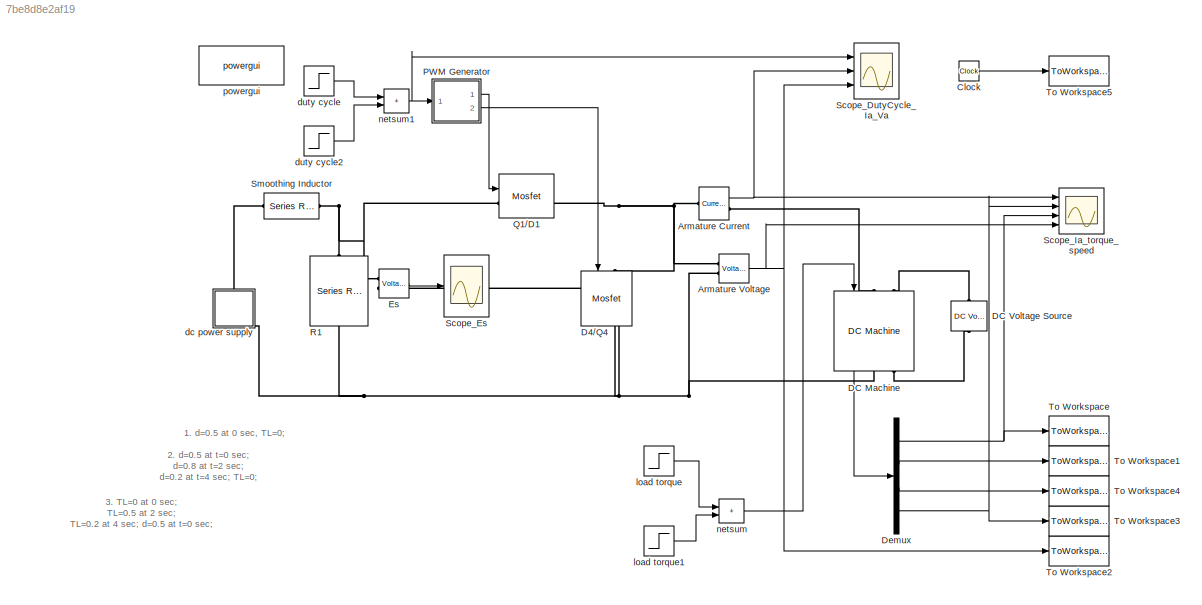
MODEL slx_7be8d8e2af19
KIND model
CONFIG AbsTol = auto
CONFIG EnableMultiTasking = on
CONFIG FixedStep = auto
CONFIG MaxStep = auto
CONFIG MinStep = auto
CONFIG RelTol = 1e-3
CONFIG SampleTimeConstraint = Unconstrained
CONFIG Solver = ode45
CONFIG SolverName = ode45
CONFIG StartTime = 0.0
CONFIG StopTime = 5
BLOCK [Reference] Armature Current   REF=spsCurrentMeasurementLib/Current Measurement
  AttributesFormatString = \n
  Ports = [0, 1, 0, 0, 0, 1, 1]
  SourceBlock = spsCurrentMeasurementLib/Current Measurement
  SourceProductBaseCode = PS
  SourceType = Current Measurement
  Tag = PoWeRsYsTeMmEaSuReMeNt
BLOCK [Reference] Armature Voltage  REF=spsVoltageMeasurementLib/Voltage Measurement
  AttributesFormatString = \n
  Ports = [0, 1, 0, 0, 0, 2]
  SourceBlock = spsVoltageMeasurementLib/Voltage Measurement
  SourceProductBaseCode = PS
  SourceType = Voltage Measurement
  Tag = PoWeRsYsTeMmEaSuReMeNt
BLOCK [Clock] Clock
BLOCK [Reference] D4//Q4  REF=spsMosfetLib/Mosfet
  Ports = [1, 1, 0, 0, 0, 1, 1]
  SourceBlock = spsMosfetLib/Mosfet
  SourceProductBaseCode = PS
  SourceType = Mosfet
BLOCK [Reference] DC Machine  REF=spsDCMachineLib/DC Machine
  AttributesFormatString = \n
  Ports = [1, 1, 0, 0, 0, 2, 2]
  SourceBlock = spsDCMachineLib/DC Machine
  SourceProductBaseCode = PS
  SourceType = DC machine
BLOCK [Reference] DC Voltage Source  REF=spsDCVoltageSourceLib/DC Voltage Source
  AttributesFormatString = \n
  Description = source block
  Ports = [0, 0, 0, 0, 0, 1, 1]
  SourceBlock = spsDCVoltageSourceLib/DC Voltage Source
  SourceProductBaseCode = PS
  SourceType = DC Voltage Source
BLOCK [Demux] Demux
  DisplayOption = none
  Ports = [1, 4]
BLOCK [Reference] Es  REF=spsVoltageMeasurementLib/Voltage Measurement
  AttributesFormatString = \n
  Ports = [0, 1, 0, 0, 0, 2]
  SourceBlock = spsVoltageMeasurementLib/Voltage Measurement
  SourceProductBaseCode = PS
  SourceType = Voltage Measurement
  Tag = PoWeRsYsTeMmEaSuReMeNt
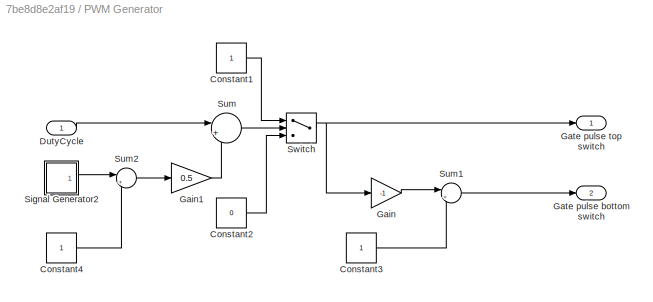
BLOCK [SubSystem] PWM Generator
  Ports = [1, 2]
  RequestExecContextInheritance = off
BLOCK [Constant] PWM Generator/Constant1
BLOCK [Constant] PWM Generator/Constant2
  Value = 0
BLOCK [Constant] PWM Generator/Constant3
BLOCK [Constant] PWM Generator/Constant4
BLOCK [Inport] PWM Generator/DutyCycle
BLOCK [Gain] PWM Generator/Gain
  Gain = -1
  OutDataTypeStr = Inherit: Same as input
  ParamDataTypeStr = Inherit: Same as input
  SaturateOnIntegerOverflow = on
BLOCK [Gain] PWM Generator/Gain1
  Gain = 0.5
  OutDataTypeStr = Inherit: Same as input
  ParamDataTypeStr = Inherit: Same as input
  SaturateOnIntegerOverflow = on
BLOCK [Outport] PWM Generator/Gate pulse bottom switch
  Port = 2
  VectorParamsAs1DForOutWhenUnconnected = off
BLOCK [Outport] PWM Generator/Gate pulse top switch
  VectorParamsAs1DForOutWhenUnconnected = off
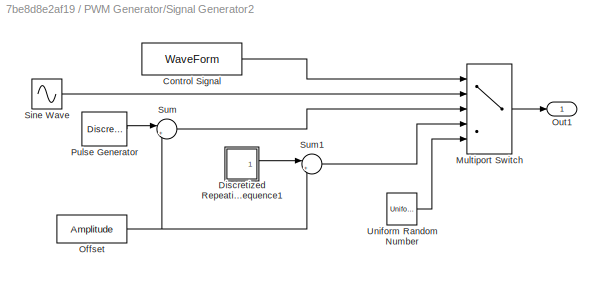
BLOCK [SubSystem] PWM Generator/Signal Generator2
  Ports = [0, 1]
  RequestExecContextInheritance = off
BLOCK [Constant] PWM Generator/Signal Generator2/Control Signal
  Value = WaveForm
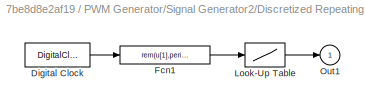
BLOCK [SubSystem] PWM Generator/Signal Generator2/Discretized Repeating Sequence1
  AncestorBlock = discretizing/Discretized\nRepeating Sequence
  Ports = [0, 1]
  RequestExecContextInheritance = off
BLOCK [DigitalClock] PWM Generator/Signal Generator2/Discretized Repeating Sequence1/Digital Clock
  SampleTime = SampleTime
BLOCK [Fcn] PWM Generator/Signal Generator2/Discretized Repeating Sequence1/Fcn1
  Expr = rem(u[1],period)
BLOCK [Lookup] PWM Generator/Signal Generator2/Discretized Repeating Sequence1/Look-Up Table
  InputValues = rep_seq_t
  Table = rep_seq_y
BLOCK [Outport] PWM Generator/Signal Generator2/Discretized Repeating Sequence1/Out1
  VectorParamsAs1DForOutWhenUnconnected = off
BLOCK [MultiPortSwitch] PWM Generator/Signal Generator2/Multiport Switch
  Inputs = 4
  Ports = [5, 1]
  SaturateOnIntegerOverflow = off
BLOCK [Constant] PWM Generator/Signal Generator2/Offset
  Value = Amplitude
BLOCK [Outport] PWM Generator/Signal Generator2/Out1
  VectorParamsAs1DForOutWhenUnconnected = off
BLOCK [DiscretePulseGenerator] PWM Generator/Signal Generator2/Pulse Generator
  Amplitude = 2*Amplitude
  Period = PeriodSamples
  PhaseDelay = halfSamples
  Ports = [0, 1]
  PulseWidth = halfSamples
  SampleTime = st
BLOCK [Sin] PWM Generator/Signal Generator2/Sine Wave
  Amplitude = Amplitude
  Frequency = frequencyRads
  Ports = [0, 1]
  SampleTime = SampleTime
BLOCK [Sum] PWM Generator/Signal Generator2/Sum
  InputSameDT = on
  Inputs = |+-
  OutDataTypeStr = Inherit: Same as first input
  Ports = [2, 1]
  SaturateOnIntegerOverflow = on
BLOCK [Sum] PWM Generator/Signal Generator2/Sum1
  InputSameDT = on
  Inputs = |++
  OutDataTypeStr = Inherit: Same as first input
  Ports = [2, 1]
  SaturateOnIntegerOverflow = on
BLOCK [UniformRandomNumber] PWM Generator/Signal Generator2/Uniform Random Number
  Maximum = Amplitude
  Minimum = (-1)*Amplitude
  SampleTime = SampleTime
BLOCK [Sum] PWM Generator/Sum
  Inputs = |+-
  Ports = [2, 1]
  SaturateOnIntegerOverflow = on
BLOCK [Sum] PWM Generator/Sum1
  Inputs = |++
  Ports = [2, 1]
  SaturateOnIntegerOverflow = on
BLOCK [Sum] PWM Generator/Sum2
  Inputs = |++
  Ports = [2, 1]
  SaturateOnIntegerOverflow = on
BLOCK [Switch] PWM Generator/Switch
  Criteria = u2 > Threshold
  InputSameDT = off
BLOCK [Reference] Q1//D1  REF=spsMosfetLib/Mosfet
  Ports = [1, 1, 0, 0, 0, 1, 1]
  SourceBlock = spsMosfetLib/Mosfet
  SourceProductBaseCode = PS
  SourceType = Mosfet
BLOCK [Reference] R1  REF=spsSeriesRLCBranchLib/Series RLC Branch
  Ports = [0, 0, 0, 0, 0, 1, 1]
  SourceBlock = spsSeriesRLCBranchLib/Series RLC Branch
  SourceProductBaseCode = PS
  SourceType = Series RLC Branch
BLOCK [Scope] Scope_DutyCycle_Ia_Va
  Floating = off
  NumInputPorts = 3
  Ports = [3]
  ScopeSpecificationString = Simulink.scopes.TimeScopeBlockCfg('CurrentConfiguration', extmgr.ConfigurationSet(extmgr.Configuration('Core','General UI',true),extmgr.Configuration('Core','Source UI',true),extmgr.Configuration('Sources','WiredSimulink',true,'DataLoggingSaveFormat','StructureWithTime','DataLoggingDecimation','1','DataLoggingDecimateData',true),extmgr.Configuration('Visuals','Time Domain',true,'SerializedDisplays...<+3028ch>
BLOCK [Scope] Scope_Es
  Floating = off
  NumInputPorts = 1
  Ports = [1]
  ScopeSpecificationString = Simulink.scopes.TimeScopeBlockCfg('CurrentConfiguration', extmgr.ConfigurationSet(extmgr.Configuration('Core','General UI',true),extmgr.Configuration('Core','Source UI',true),extmgr.Configuration('Sources','WiredSimulink',true,'DataLoggingVariableName','ScopeData1','DataLoggingSaveFormat','StructureWithTime','DataLoggingDecimation','1','DataLoggingDecimateData',true),extmgr.Configuration('Visuals'...<+1600ch>
BLOCK [Scope] Scope_Ia_torque_speed
  Floating = off
  NumInputPorts = 4
  Ports = [4]
  ScopeSpecificationString = Simulink.scopes.TimeScopeBlockCfg('CurrentConfiguration', extmgr.ConfigurationSet(extmgr.Configuration('Core','General UI',true),extmgr.Configuration('Core','Source UI',true),extmgr.Configuration('Sources','WiredSimulink',true,'DataLoggingVariableName','ScopeData3','DataLoggingSaveFormat','StructureWithTime','DataLoggingDecimation','1','DataLoggingDecimateData',true),extmgr.Configuration('Visuals'...<+3738ch>
BLOCK [Reference] Smoothing Inductor  REF=spsSeriesRLCBranchLib/Series RLC Branch
  Ports = [0, 0, 0, 0, 0, 1, 1]
  SourceBlock = spsSeriesRLCBranchLib/Series RLC Branch
  SourceProductBaseCode = PS
  SourceType = Series RLC Branch
BLOCK [ToWorkspace] To Workspace
  MaxDataPoints = inf
  Ports = [1]
  SampleTime = 1e-5
  VariableName = Speed_o
BLOCK [ToWorkspace] To Workspace1
  MaxDataPoints = inf
  Ports = [1]
  SampleTime = 1e-5
  VariableName = ia_o
BLOCK [ToWorkspace] To Workspace2
  MaxDataPoints = inf
  Ports = [1]
  SampleTime = 1e-5
  VariableName = Voltage_o
BLOCK [ToWorkspace] To Workspace3
  MaxDataPoints = inf
  Ports = [1]
  SampleTime = 1e-5
  VariableName = Torque_o
BLOCK [ToWorkspace] To Workspace4
  MaxDataPoints = inf
  Ports = [1]
  SampleTime = 1e-5
  VariableName = if_o
BLOCK [ToWorkspace] To Workspace5
  MaxDataPoints = inf
  Ports = [1]
  SampleTime = 1e-5
  VariableName = time
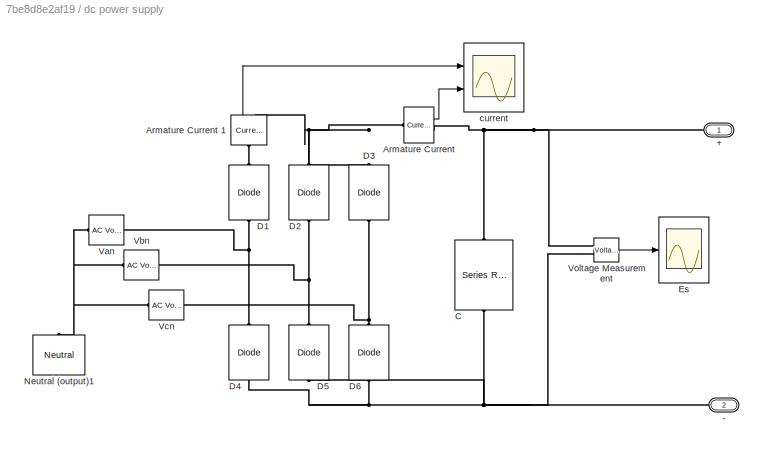
BLOCK [SubSystem] dc power supply
  Ports = [0, 0, 0, 0, 0, 1, 1]
  RequestExecContextInheritance = off
BLOCK [PMIOPort] dc power supply/+
  Side = Left
BLOCK [PMIOPort] dc power supply/-
  Port = 2
  Side = Right
BLOCK [Reference] dc power supply/Armature Current   REF=spsCurrentMeasurementLib/Current Measurement
  AttributesFormatString = \n
  Ports = [0, 1, 0, 0, 0, 1, 1]
  SourceBlock = spsCurrentMeasurementLib/Current Measurement
  SourceProductBaseCode = PS
  SourceType = Current Measurement
  Tag = PoWeRsYsTeMmEaSuReMeNt
BLOCK [Reference] dc power supply/Armature Current 1  REF=spsCurrentMeasurementLib/Current Measurement
  AttributesFormatString = \n
  Ports = [0, 1, 0, 0, 0, 1, 1]
  SourceBlock = spsCurrentMeasurementLib/Current Measurement
  SourceProductBaseCode = PS
  SourceType = Current Measurement
  Tag = PoWeRsYsTeMmEaSuReMeNt
BLOCK [Reference] dc power supply/C  REF=spsSeriesRLCBranchLib/Series RLC Branch
  Ports = [0, 0, 0, 0, 0, 1, 1]
  SourceBlock = spsSeriesRLCBranchLib/Series RLC Branch
  SourceProductBaseCode = PS
  SourceType = Series RLC Branch
BLOCK [Reference] dc power supply/D1  REF=spsDiodeLib/Diode
  Ports = [0, 0, 0, 0, 0, 1, 1]
  SourceBlock = spsDiodeLib/Diode
  SourceProductBaseCode = PS
  SourceType = Diode
BLOCK [Reference] dc power supply/D2  REF=spsDiodeLib/Diode
  Ports = [0, 0, 0, 0, 0, 1, 1]
  SourceBlock = spsDiodeLib/Diode
  SourceProductBaseCode = PS
  SourceType = Diode
BLOCK [Reference] dc power supply/D3  REF=spsDiodeLib/Diode
  Ports = [0, 0, 0, 0, 0, 1, 1]
  SourceBlock = spsDiodeLib/Diode
  SourceProductBaseCode = PS
  SourceType = Diode
BLOCK [Reference] dc power supply/D4  REF=spsDiodeLib/Diode
  Ports = [0, 0, 0, 0, 0, 1, 1]
  SourceBlock = spsDiodeLib/Diode
  SourceProductBaseCode = PS
  SourceType = Diode
BLOCK [Reference] dc power supply/D5  REF=spsDiodeLib/Diode
  Ports = [0, 0, 0, 0, 0, 1, 1]
  SourceBlock = spsDiodeLib/Diode
  SourceProductBaseCode = PS
  SourceType = Diode
BLOCK [Reference] dc power supply/D6  REF=spsDiodeLib/Diode
  Ports = [0, 0, 0, 0, 0, 1, 1]
  SourceBlock = spsDiodeLib/Diode
  SourceProductBaseCode = PS
  SourceType = Diode
BLOCK [Scope] dc power supply/Es
  Floating = off
  NumInputPorts = 1
  Ports = [1]
  ScopeSpecificationString = Simulink.scopes.TimeScopeBlockCfg('CurrentConfiguration', extmgr.ConfigurationSet(extmgr.Configuration('Core','General UI',true),extmgr.Configuration('Core','Source UI',true),extmgr.Configuration('Sources','WiredSimulink',true,'DataLoggingVariableName','ScopeData4','DataLoggingSaveFormat','StructureWithTime','DataLoggingDecimation','1','DataLoggingDecimateData',true),extmgr.Configuration('Visuals'...<+1598ch>
BLOCK [Reference] dc power supply/Neutral (output)1  REF=spsNeutralLib/Neutral
  AttributesFormatString = node %<NodeNumber>
  Ports = [0, 0, 0, 0, 0, 1]
  SourceBlock = spsNeutralLib/Neutral
  SourceProductBaseCode = PS
  SourceType = Neutral
BLOCK [Reference] dc power supply/Van  REF=spsACVoltageSourceLib/AC Voltage Source
  AttributesFormatString = \n
  Description = source block
  Ports = [0, 0, 0, 0, 0, 1, 1]
  SourceBlock = spsACVoltageSourceLib/AC Voltage Source
  SourceProductBaseCode = PS
  SourceType = AC Voltage Source
BLOCK [Reference] dc power supply/Vbn  REF=spsACVoltageSourceLib/AC Voltage Source
  AttributesFormatString = \n
  Description = source block
  Ports = [0, 0, 0, 0, 0, 1, 1]
  SourceBlock = spsACVoltageSourceLib/AC Voltage Source
  SourceProductBaseCode = PS
  SourceType = AC Voltage Source
BLOCK [Reference] dc power supply/Vcn  REF=spsACVoltageSourceLib/AC Voltage Source
  AttributesFormatString = \n
  Description = source block
  Ports = [0, 0, 0, 0, 0, 1, 1]
  SourceBlock = spsACVoltageSourceLib/AC Voltage Source
  SourceProductBaseCode = PS
  SourceType = AC Voltage Source
BLOCK [Reference] dc power supply/Voltage Measurement  REF=spsVoltageMeasurementLib/Voltage Measurement
  Ports = [0, 1, 0, 0, 0, 2]
  SourceBlock = spsVoltageMeasurementLib/Voltage Measurement
  SourceProductBaseCode = PS
  SourceType = Voltage Measurement
BLOCK [Scope] dc power supply/current
  Floating = off
  NumInputPorts = 2
  Ports = [2]
  ScopeSpecificationString = Simulink.scopes.TimeScopeBlockCfg('CurrentConfiguration', extmgr.ConfigurationSet(extmgr.Configuration('Core','General UI',true),extmgr.Configuration('Core','Source UI',true),extmgr.Configuration('Sources','WiredSimulink',true,'DataLoggingVariableName','ScopeData2','DataLoggingSaveFormat','StructureWithTime','DataLoggingDecimation','1','DataLoggingDecimateData',true),extmgr.Configuration('Visuals'...<+2308ch>
BLOCK [Step] duty cycle
  After = 0.8
  Before = 0.5
  SampleTime = 0
  Time = 2
BLOCK [Step] duty cycle2
  After = -0.6
  SampleTime = 0
  Time = 3.5
BLOCK [Step] load torque
  After = 0
  SampleTime = 0
  Time = 1.5
BLOCK [Step] load torque1
  After = 0
  SampleTime = 0
  Time = 3
BLOCK [Sum] netsum
  IconShape = rectangular
  InputSameDT = on
  Inputs = 2
  OutDataTypeStr = Inherit: Same as first input
  Ports = [2, 1]
  SaturateOnIntegerOverflow = on
BLOCK [Sum] netsum1
  IconShape = rectangular
  InputSameDT = on
  Inputs = 2
  OutDataTypeStr = Inherit: Same as first input
  Ports = [2, 1]
  SaturateOnIntegerOverflow = on
BLOCK [Reference] powergui  REF=spspowerguiLib/powergui
  Ports = []
  SourceBlock = spspowerguiLib/powergui
  SourceProductBaseCode = PS
  SourceType = PSB option menu block
ANNOTATION (root): 1. d=0.5 at 0 sec, TL=0;
ANNOTATION (root): 3. TL=0 at 0 sec; TL=0.5 at 2 sec; TL=0.2 at 4 sec; d=0.5 at t=0 sec;
ANNOTATION (root): 2. d=0.5 at t=0 sec; d=0.8 at t=2 sec; d=0.2 at t=4 sec; TL=0;
NET Armature Current :1 -> Scope_DutyCycle_Ia_Va:2, Scope_Ia_torque_speed:1
NET Armature Voltage:1 -> Scope_DutyCycle_Ia_Va:3, Scope_Ia_torque_speed:4, To Workspace2:1
LINE Clock:1 -> To Workspace5:1
LINE DC Machine:1 -> Demux:1
NET Demux:1 -> Scope_Ia_torque_speed:3, To Workspace:1
LINE Demux:2 -> To Workspace1:1
LINE Demux:3 -> To Workspace4:1
NET Demux:4 -> Scope_Ia_torque_speed:2, To Workspace3:1
LINE Es:1 -> Scope_Es:1
LINE PWM Generator/Constant1:1 -> PWM Generator/Switch:1
LINE PWM Generator/Constant2:1 -> PWM Generator/Switch:3
LINE PWM Generator/Constant3:1 -> PWM Generator/Sum1:2
LINE PWM Generator/Constant4:1 -> PWM Generator/Sum2:2
LINE PWM Generator/DutyCycle:1 -> PWM Generator/Sum:1
LINE PWM Generator/Gain1:1 -> PWM Generator/Sum:2
LINE PWM Generator/Gain:1 -> PWM Generator/Sum1:1
LINE PWM Generator/Signal Generator2:1 -> PWM Generator/Sum2:1
LINE PWM Generator/Sum1:1 -> PWM Generator/Gate pulse bottom switch:1
LINE PWM Generator/Sum2:1 -> PWM Generator/Gain1:1
LINE PWM Generator/Sum:1 -> PWM Generator/Switch:2
NET PWM Generator/Switch:1 -> PWM Generator/Gain:1, PWM Generator/Gate pulse top switch:1
LINE PWM Generator:1 -> Q1//D1:1
LINE PWM Generator:2 -> D4//Q4:1
LINE dc power supply/Armature Current 1:1 -> dc power supply/current:1
LINE dc power supply/Armature Current :1 -> dc power supply/current:2
LINE dc power supply/Voltage Measurement:1 -> dc power supply/Es:1
LINE duty cycle2:1 -> netsum1:2
LINE duty cycle:1 -> netsum1:1
LINE load torque1:1 -> netsum:2
LINE load torque:1 -> netsum:1
NET netsum1:1 -> PWM Generator:1, Scope_DutyCycle_Ia_Va:1
LINE netsum:1 -> DC Machine:1
PNET net1: Armature Current :LConn1 -- Armature Voltage:LConn1 -- D4//Q4:LConn1 -- Q1//D1:RConn1
PLINE Armature Current :RConn1 -- DC Machine:LConn1
PNET net2: Armature Voltage:LConn2 -- D4//Q4:RConn1 -- DC Machine:RConn1 -- Es:LConn2 -- R1:RConn1 -- dc power supply:RConn1
PLINE DC Machine:LConn2 -- DC Voltage Source:RConn1
PLINE DC Machine:RConn2 -- DC Voltage Source:LConn1
PNET net3: Es:LConn1 -- Q1//D1:LConn1 -- R1:LConn1 -- Smoothing Inductor:RConn1
PLINE Smoothing Inductor:LConn1 -- dc power supply:LConn1
PNET net4: dc power supply/+:RConn1 -- dc power supply/Armature Current :RConn1 -- dc power supply/C:LConn1 -- dc power supply/Voltage Measurement:LConn1
PNET net5: dc power supply/-:RConn1 -- dc power supply/C:RConn1 -- dc power supply/D4:LConn1 -- dc power supply/D5:LConn1 -- dc power supply/D6:LConn1 -- dc power supply/Voltage Measurement:LConn2
PLINE dc power supply/Armature Current 1:LConn1 -- dc power supply/D1:RConn1
PNET net6: dc power supply/Armature Current 1:RConn1 -- dc power supply/Armature Current :LConn1 -- dc power supply/D2:RConn1 -- dc power supply/D3:RConn1
PNET net7: dc power supply/D1:LConn1 -- dc power supply/D4:RConn1 -- dc power supply/Van:RConn1
PNET net8: dc power supply/D2:LConn1 -- dc power supply/D5:RConn1 -- dc power supply/Vbn:RConn1
PNET net9: dc power supply/D3:LConn1 -- dc power supply/D6:RConn1 -- dc power supply/Vcn:RConn1
PNET net10: dc power supply/Neutral (output)1:LConn1 -- dc power supply/Van:LConn1 -- dc power supply/Vbn:LConn1 -- dc power supply/Vcn:LConn1
note: NET lines group one-source signal fan-out (src -> all destinations, sorted); 1:1 wires keep LINE; PNET lines group multi-terminal physical nets as a canonical sorted terminal list (undirected conserving connections); 2-terminal nets keep the pairwise PLINE form
